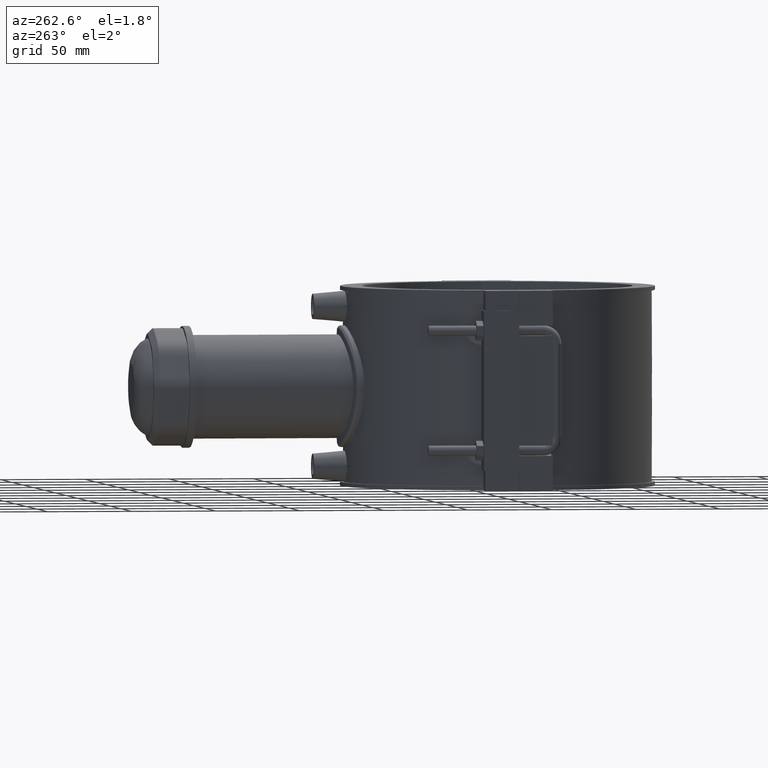
[diagram: clean part render]
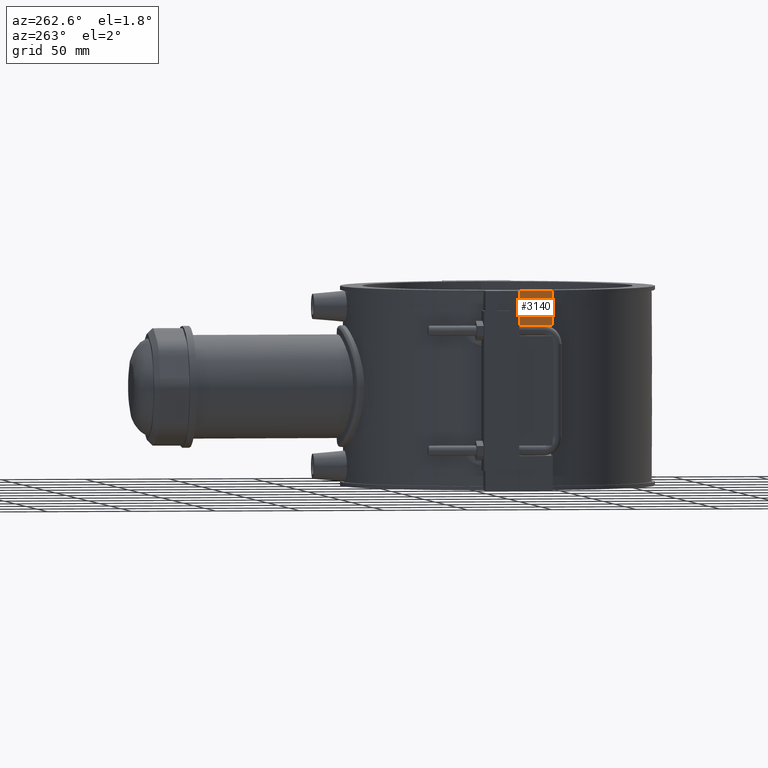
[diagram: same view with one face highlighted and labeled with its STEP entity id]
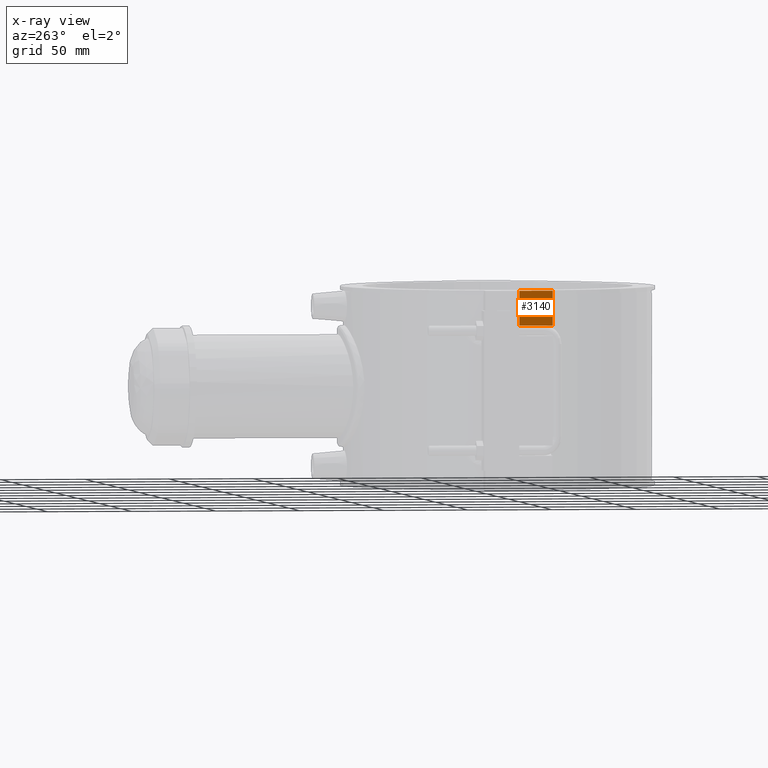
[diagram: x-ray of the same camera — body ghosted, the highlighted face saturated]
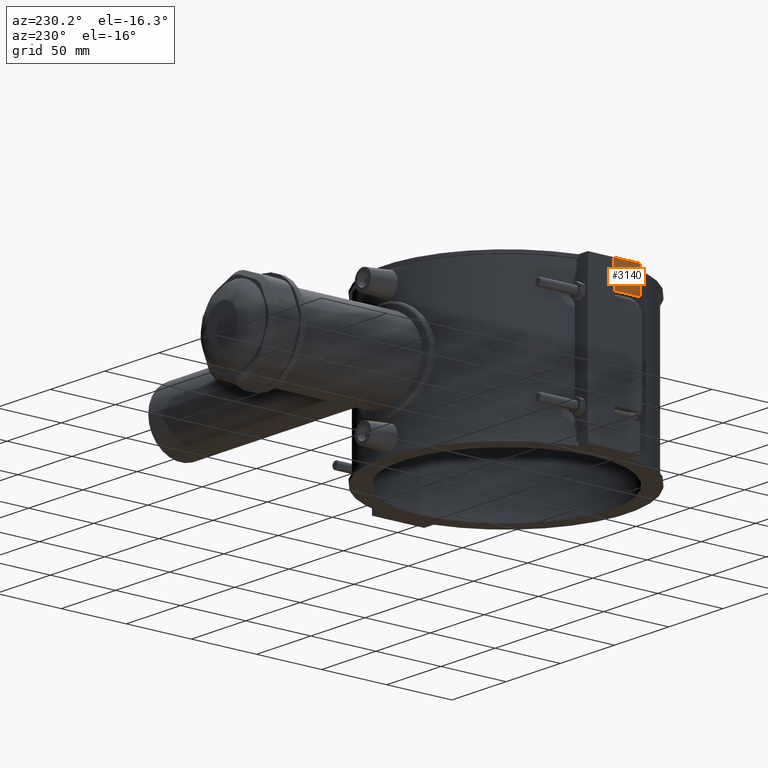
[diagram: same view with one face highlighted and labeled with its STEP entity id]
A machine part, auxiliary view. The second image highlights one B-rep face of the part: STEP entity #3140.
The next image is the same camera in x-ray: the body ghosted, the highlighted face saturated — about 0% of this face is hidden behind the body in this view.
A second angle (auxiliary view) of the same face is appended — the face is thin or edge-on in the first view.
In plain terms, the highlighted planar face has unit normal (-1, 0, 0).
Its self-contained STEP definition (entity closure, byte-faithful):
#112=LINE('',#5187,#391);
#251=LINE('',#6102,#530);
#264=LINE('',#6131,#543);
#265=LINE('',#6132,#544);
#391=VECTOR('',#3721,20.6);
#530=VECTOR('',#4090,19.95);
#543=VECTOR('',#4123,19.95);
#544=VECTOR('',#4124,20.6);
#677=PLANE('',#3402);
#998=FACE_OUTER_BOUND('',#1216,.T.);
#1216=EDGE_LOOP('',(#2702,#2703,#2704,#2705));
#1416=VERTEX_POINT('',#5184);
#1417=VERTEX_POINT('',#5186);
#1572=VERTEX_POINT('',#6101);
#1578=VERTEX_POINT('',#6130);
#1751=EDGE_CURVE('',#1417,#1416,#112,.T.);
#1963=EDGE_CURVE('',#1572,#1417,#251,.T.);
#1978=EDGE_CURVE('',#1578,#1416,#264,.T.);
#1979=EDGE_CURVE('',#1578,#1572,#265,.T.);
#2702=ORIENTED_EDGE('',*,*,#1963,.T.);
#2703=ORIENTED_EDGE('',*,*,#1751,.T.);
#2704=ORIENTED_EDGE('',*,*,#1978,.F.);
#2705=ORIENTED_EDGE('',*,*,#1979,.T.);
#3140=ADVANCED_FACE('',(#998),#677,.T.);
#3402=AXIS2_PLACEMENT_3D('',#6129,#4121,#4122);
#3721=DIRECTION('',(0.,0.,1.));
#4090=DIRECTION('',(0.,-1.,0.));
#4121=DIRECTION('center_axis',(-1.,0.,0.));
#4122=DIRECTION('ref_axis',(0.,-1.,0.));
#4123=DIRECTION('',(0.,-1.,0.));
#4124=DIRECTION('',(0.,0.,-1.));
#5184=CARTESIAN_POINT('',(-99.5,-20.,59.));
#5186=CARTESIAN_POINT('',(-99.5,-20.,38.4));
#5187=CARTESIAN_POINT('',(-99.5,-20.,0.));
#6101=CARTESIAN_POINT('',(-99.5,-0.0500000000000078,38.4));
#6102=CARTESIAN_POINT('',(-99.5,1.11022302462516E-14,38.4));
#6129=CARTESIAN_POINT('Origin',(-99.5,20.,0.));
#6130=CARTESIAN_POINT('',(-99.5,-0.0500000000000078,59.));
#6131=CARTESIAN_POINT('',(-99.5,20.,59.));
#6132=CARTESIAN_POINT('',(-99.5,-0.0500000000000078,-29.5));